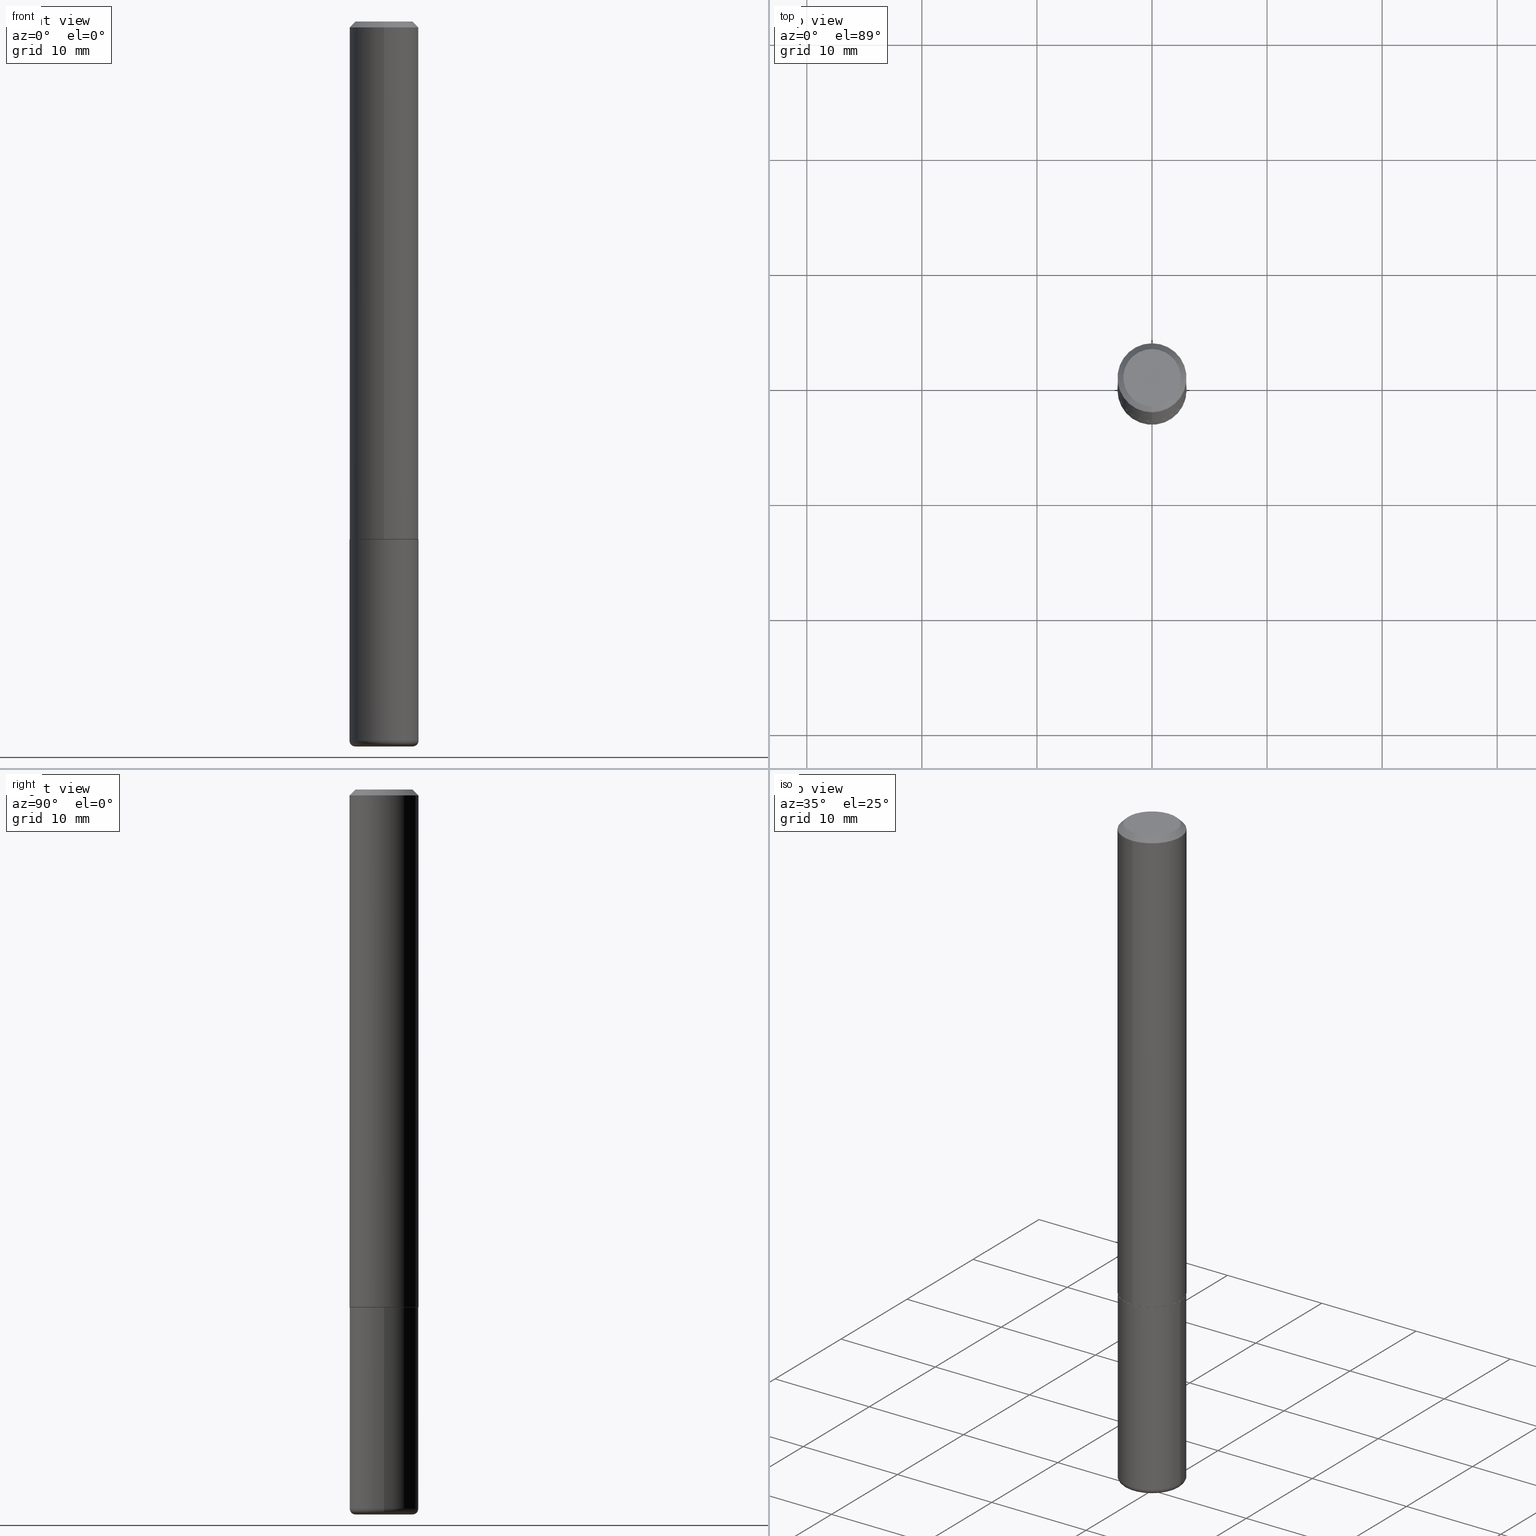
[diagram: canonical four-view strip — front | top / right | iso, engineering-drawing reading convention]
A machine part, canonical four-view strip (front | top / right | iso — engineering-drawing reading convention). The complete STEP part file that produces these views, byte-faithful:
ISO-10303-21;
HEADER;
FILE_DESCRIPTION (( 'STEP AP203' ),
    '1' );
FILE_NAME ('47484.STEP',
    '2024-03-06T02:10:16',
    ( '' ),
    ( '' ),
    'SwSTEP 2.0',
    'SolidWorks 2023',
    '' );
FILE_SCHEMA (( 'CONFIG_CONTROL_DESIGN' ));
ENDSEC;

DATA;
#1 = CIRCLE ( 'NONE', #48, 0.01970000000000002999 ) ;
#2 = EDGE_LOOP ( 'NONE', ( #354, #217 ) ) ;
#3 = ORIENTED_EDGE ( 'NONE', *, *, #398, .T. ) ;
#4 =( CONVERSION_BASED_UNIT ( 'INCH', #192 ) LENGTH_UNIT ( ) NAMED_UNIT ( #39 ) );
#5 = CC_DESIGN_PERSON_AND_ORGANIZATION_ASSIGNMENT ( #362, #401, ( #76 ) ) ;
#6 = AXIS2_PLACEMENT_3D ( 'NONE', #379, #180, #202 ) ;
#7 = CC_DESIGN_APPROVAL ( #163, ( #76 ) ) ;
#8 = PERSON ( 'UNSPECIFIED', 'UNSPECIFIED', 'UNSPECIFIED', ('UNSPECIFIED'), ('UNSPECIFIED'), ('UNSPECIFIED') ) ;
#9 = FACE_OUTER_BOUND ( 'NONE', #44, .T. ) ;
#10 = PERSON_AND_ORGANIZATION ( #8, #215 ) ;
#11 = FACE_OUTER_BOUND ( 'NONE', #311, .T. ) ;
#12 = CALENDAR_DATE ( 2024, 5, 3 ) ;
#13 = ADVANCED_FACE ( 'NONE', ( #60 ), #185, .F. ) ;
#14 = CARTESIAN_POINT ( 'NONE',  ( -8.177049295570184665E-16, -0.1171000000000061991, -1.771600000000000064 ) ) ;
#15 = CARTESIAN_POINT ( 'NONE',  ( 4.328441800620257960E-29, -6.191166019306087880E-15, -1.771600000000000286 ) ) ;
#16 = CC_DESIGN_PERSON_AND_ORGANIZATION_ASSIGNMENT ( #363, #223, ( #76 ) ) ;
#17 = AXIS2_PLACEMENT_3D ( 'NONE', #15, #105, #82 ) ;
#18 = CIRCLE ( 'NONE', #24, 0.1181000000000002326 ) ;
#19 = CARTESIAN_POINT ( 'NONE',  ( -0.1180999999999999966, -6.549172690193302663E-15, -1.771600000000000286 ) ) ;
#20 = APPROVAL_STATUS ( 'not_yet_approved' ) ;
#21 = CARTESIAN_POINT ( 'NONE',  ( -0.1181000000000000105, -7.751988011424766742E-15, -2.460600000000000342 ) ) ;
#22 = CARTESIAN_POINT ( 'NONE',  ( 0.09840000000000000135, -9.347044692216982806E-15, -2.480300000000000171 ) ) ;
#23 = DIRECTION ( 'NONE',  ( 1.000000000000000000, -6.982962677686261977E-15, 0.000000000000000000 ) ) ;
#24 = AXIS2_PLACEMENT_3D ( 'NONE', #85, #230, #208 ) ;
#25 = CC_DESIGN_PERSON_AND_ORGANIZATION_ASSIGNMENT ( #30, #154, ( #73 ) ) ;
#26 = CARTESIAN_POINT ( 'NONE',  ( 4.328441800620257960E-29, -6.191166019306087880E-15, -1.771600000000000286 ) ) ;
#27 = ORIENTED_EDGE ( 'NONE', *, *, #111, .T. ) ;
#28 = DIRECTION ( 'NONE',  ( -2.445468806185136877E-29, 3.491481338843145188E-15, 1.000000000000000000 ) ) ;
#29 = DIRECTION ( 'NONE',  ( -2.445468806185136597E-29, 3.491481338843145583E-15, 1.000000000000000000 ) ) ;
#30 = PERSON_AND_ORGANIZATION ( #8, #215 ) ;
#31 = CIRCLE ( 'NONE', #80, 0.1180999999999999966 ) ;
#32 = ORIENTED_EDGE ( 'NONE', *, *, #251, .T. ) ;
#33 = ORIENTED_EDGE ( 'NONE', *, *, #398, .F. ) ;
#34 =( NAMED_UNIT ( * ) SI_UNIT ( $, .STERADIAN. ) SOLID_ANGLE_UNIT ( ) );
#35 = EDGE_CURVE ( 'NONE', #229, #101, #344, .T. ) ;
#36 = ORIENTED_EDGE ( 'NONE', *, *, #367, .F. ) ;
#37 = SECURITY_CLASSIFICATION ( '', '', #40 ) ;
#38 = UNCERTAINTY_MEASURE_WITH_UNIT (LENGTH_MEASURE( 1.000000000000000082E-05 ), #4, 'distance_accuracy_value', 'NONE');
#39 = DIMENSIONAL_EXPONENTS ( 1.000000000000000000, 0.000000000000000000, 0.000000000000000000, 0.000000000000000000, 0.000000000000000000, 0.000000000000000000, 0.000000000000000000 ) ;
#40 = SECURITY_CLASSIFICATION_LEVEL ( 'unclassified' ) ;
#41 = ORIENTED_EDGE ( 'NONE', *, *, #43, .T. ) ;
#42 = LOCAL_TIME ( 21, 10, 16.00000000000000000, #218 ) ;
#43 = EDGE_CURVE ( 'NONE', #400, #101, #416, .T. ) ;
#44 = EDGE_LOOP ( 'NONE', ( #55, #382, #276, #316 ) ) ;
#45 = CALENDAR_DATE ( 2024, 5, 3 ) ;
#46 = DIRECTION ( 'NONE',  ( 2.438088387897960049E-29, -3.491481338843145188E-15, -1.000000000000000000 ) ) ;
#47 = CARTESIAN_POINT ( 'NONE',  ( 0.000000000000000000, 0.000000000000000000, 0.000000000000000000 ) ) ;
#48 = AXIS2_PLACEMENT_3D ( 'NONE', #320, #89, #385 ) ;
#49 = ADVANCED_FACE ( 'NONE', ( #11 ), #339, .T. ) ;
#50 = DIRECTION ( 'NONE',  ( -2.445468806185136597E-29, 3.491481338843145583E-15, 1.000000000000000000 ) ) ;
#51 = CARTESIAN_POINT ( 'NONE',  ( -0.1180999999999999966, 8.391509709326782957E-16, -5.809262341591043784E-30 ) ) ;
#52 = APPROVAL_ROLE ( '' ) ;
#53 = DIRECTION ( 'NONE',  ( -6.982962677686265922E-15, -1.000000000000000000, 3.494674881071397705E-15 ) ) ;
#54 = DIRECTION ( 'NONE',  ( -2.445468806185136597E-29, 3.491481338843145583E-15, 1.000000000000000000 ) ) ;
#55 = ORIENTED_EDGE ( 'NONE', *, *, #228, .F. ) ;
#56 = APPROVAL ( #20, 'UNSPECIFIED' ) ;
#57 = ADVANCED_FACE ( 'NONE', ( #374 ), #126, .T. ) ;
#58 = CARTESIAN_POINT ( 'NONE',  ( 6.017320544499148018E-29, -8.591138982357444151E-15, -2.460600000000000342 ) ) ;
#59 = AXIS2_PLACEMENT_3D ( 'NONE', #176, #54, #407 ) ;
#60 = FACE_OUTER_BOUND ( 'NONE', #247, .T. ) ;
#61 = FACE_OUTER_BOUND ( 'NONE', #104, .T. ) ;
#62 = APPROVAL_DATE_TIME ( #240, #306 ) ;
#63 = EDGE_CURVE ( 'NONE', #101, #229, #364, .T. ) ;
#64 = VERTEX_POINT ( 'NONE', #14 ) ;
#65 = ORIENTED_EDGE ( 'NONE', *, *, #167, .T. ) ;
#66 = APPROVAL_PERSON_ORGANIZATION ( #397, #306, #348 ) ;
#67 = VERTEX_POINT ( 'NONE', #261 ) ;
#68 = PERSON_AND_ORGANIZATION_ROLE ( 'design_owner' ) ;
#69 = CARTESIAN_POINT ( 'NONE',  ( -6.369341406389364514E-45, 9.110357005365375257E-31, 2.606925483887165818E-16 ) ) ;
#70 = AXIS2_PLACEMENT_3D ( 'NONE', #134, #334, #259 ) ;
#71 = CIRCLE ( 'NONE', #395, 0.09809999999999975684 ) ;
#72 = LOCAL_TIME ( 21, 10, 16.00000000000000000, #100 ) ;
#73 = PRODUCT_DEFINITION ( 'UNKNOWN', '', #76, #290 ) ;
#74 = EDGE_CURVE ( 'NONE', #237, #204, #136, .T. ) ;
#75 = VECTOR ( 'NONE', #187, 39.37007874015748143 ) ;
#76 = PRODUCT_DEFINITION_FORMATION_WITH_SPECIFIED_SOURCE ( 'ANY', '', #233, .NOT_KNOWN. ) ;
#77 = FACE_OUTER_BOUND ( 'NONE', #122, .T. ) ;
#78 = CARTESIAN_POINT ( 'NONE',  ( 6.065496279980994755E-29, -8.659921164732655335E-15, -2.480300000000000171 ) ) ;
#79 = CARTESIAN_POINT ( 'NONE',  ( 4.332392537037588763E-29, -6.185508339894517569E-15, -1.771600000000000286 ) ) ;
#80 = AXIS2_PLACEMENT_3D ( 'NONE', #83, #207, #388 ) ;
#81 = ORIENTED_EDGE ( 'NONE', *, *, #194, .T. ) ;
#82 = DIRECTION ( 'NONE',  ( -6.982962677686265922E-15, -1.000000000000000000, 2.332918867347791121E-15 ) ) ;
#83 = CARTESIAN_POINT ( 'NONE',  ( 6.017320544499148018E-29, -8.591138982357444151E-15, -2.460600000000000342 ) ) ;
#84 = DIRECTION ( 'NONE',  ( -6.982962677686265922E-15, -1.000000000000000000, 2.332918867347791121E-15 ) ) ;
#85 = CARTESIAN_POINT ( 'NONE',  ( 4.325998561852691348E-29, -6.187671344425017014E-15, -1.770600000000000174 ) ) ;
#86 = DIRECTION ( 'NONE',  ( 1.000000000000000000, -6.982962677686265133E-15, 0.000000000000000000 ) ) ;
#87 = CC_DESIGN_PERSON_AND_ORGANIZATION_ASSIGNMENT ( #331, #166, ( #37 ) ) ;
#88 = AXIS2_PLACEMENT_3D ( 'NONE', #227, #293, #294 ) ;
#89 = DIRECTION ( 'NONE',  ( -6.982962677686266711E-15, -1.000000000000000000, 3.491481338843145583E-15 ) ) ;
#90 = DIRECTION ( 'NONE',  ( 5.024295867788490741E-15, 0.7071067811866103003, 0.7071067811864847341 ) ) ;
#91 = ORIENTED_EDGE ( 'NONE', *, *, #314, .F. ) ;
#92 = ORIENTED_EDGE ( 'NONE', *, *, #167, .F. ) ;
#93 = ORIENTED_EDGE ( 'NONE', *, *, #367, .T. ) ;
#94 = ORIENTED_EDGE ( 'NONE', *, *, #309, .F. ) ;
#95 = EDGE_CURVE ( 'NONE', #64, #352, #175, .T. ) ;
#96 = APPROVAL_STATUS ( 'not_yet_approved' ) ;
#97 = DATE_AND_TIME ( #257, #356 ) ;
#98 = VECTOR ( 'NONE', #241, 39.37007874015748143 ) ;
#99 =( GEOMETRIC_REPRESENTATION_CONTEXT ( 3 ) GLOBAL_UNCERTAINTY_ASSIGNED_CONTEXT ( ( #38 ) ) GLOBAL_UNIT_ASSIGNED_CONTEXT ( ( #4, #127, #34 ) ) REPRESENTATION_CONTEXT ( 'NONE', 'WORKASPACE' ) );
#100 = COORDINATED_UNIVERSAL_TIME_OFFSET ( 5, 0, .BEHIND. ) ;
#101 = VERTEX_POINT ( 'NONE', #368 ) ;
#102 = ADVANCED_FACE ( 'NONE', ( #77 ), #199, .T. ) ;
#103 = ADVANCED_FACE ( 'NONE', ( #369 ), #113, .T. ) ;
#104 = EDGE_LOOP ( 'NONE', ( #33, #402, #173, #396 ) ) ;
#105 = DIRECTION ( 'NONE',  ( -2.443238767566187138E-29, 3.494674881071396916E-15, 1.000000000000000000 ) ) ;
#106 = ORIENTED_EDGE ( 'NONE', *, *, #74, .F. ) ;
#107 = DIRECTION ( 'NONE',  ( -2.445468806185136597E-29, 3.491481338843145583E-15, 1.000000000000000000 ) ) ;
#108 = CARTESIAN_POINT ( 'NONE',  ( 6.017320544499148018E-29, -8.591138982357444151E-15, -2.460600000000000342 ) ) ;
#109 = CARTESIAN_POINT ( 'NONE',  ( 0.1180999999999999966, -7.010196232129265043E-15, -1.771600000000000286 ) ) ;
#110 = CARTESIAN_POINT ( 'NONE',  ( 4.886477535132384121E-31, -6.989349762142808870E-17, -0.02000000000000004205 ) ) ;
#111 = EDGE_CURVE ( 'NONE', #204, #237, #155, .T. ) ;
#112 = AXIS2_PLACEMENT_3D ( 'NONE', #26, #149, #269 ) ;
#113 = CYLINDRICAL_SURFACE ( 'NONE', #399, 0.1180999999999999966 ) ;
#114 = DIRECTION ( 'NONE',  ( -4.851104656540957175E-15, -0.7071067811865490160, -0.7071067811865460184 ) ) ;
#115 = DIRECTION ( 'NONE',  ( -2.443238767566187138E-29, 3.494674881071396916E-15, 1.000000000000000000 ) ) ;
#116 = DIRECTION ( 'NONE',  ( 7.105427357601001859E-15, 1.000000000000000000, -3.491481338843145583E-15 ) ) ;
#117 = CARTESIAN_POINT ( 'NONE',  ( 8.246878922347484598E-16, 0.1180999999999999273, -0.02000000000000045838 ) ) ;
#118 = DIRECTION ( 'NONE',  ( 6.982962677686265922E-15, 1.000000000000000000, -3.505890868245046092E-15 ) ) ;
#119 = EDGE_LOOP ( 'NONE', ( #246, #315, #81, #92 ) ) ;
#120 = AXIS2_PLACEMENT_3D ( 'NONE', #69, #162, #157 ) ;
#121 = APPROVAL_PERSON_ORGANIZATION ( #10, #163, #366 ) ;
#122 = EDGE_LOOP ( 'NONE', ( #129, #32, #36, #389 ) ) ;
#123 = DIRECTION ( 'NONE',  ( -2.445468806185136597E-29, 3.491481338843145583E-15, 1.000000000000000000 ) ) ;
#124 = DIRECTION ( 'NONE',  ( 2.443238767566186578E-29, -3.494674881071397310E-15, -1.000000000000000000 ) ) ;
#125 = EDGE_LOOP ( 'NONE', ( #384, #3, #392, #277 ) ) ;
#126 = CONICAL_SURFACE ( 'NONE', #17, 0.1170999999999999958, 0.7853981633975336552 ) ;
#127 =( NAMED_UNIT ( * ) PLANE_ANGLE_UNIT ( ) SI_UNIT ( $, .RADIAN. ) );
#128 = CIRCLE ( 'NONE', #156, 0.1180999999999999966 ) ;
#129 = ORIENTED_EDGE ( 'NONE', *, *, #146, .T. ) ;
#130 = COORDINATED_UNIVERSAL_TIME_OFFSET ( 5, 0, .BEHIND. ) ;
#131 = AXIS2_PLACEMENT_3D ( 'NONE', #383, #116, #415 ) ;
#132 = APPROVAL_STATUS ( 'not_yet_approved' ) ;
#133 = VERTEX_POINT ( 'NONE', #359 ) ;
#134 = CARTESIAN_POINT ( 'NONE',  ( 6.065496279980994755E-29, -8.659921164732655335E-15, -2.480300000000000171 ) ) ;
#135 = DIRECTION ( 'NONE',  ( -6.982962677686265922E-15, -1.000000000000000000, 3.505890868245046092E-15 ) ) ;
#136 = CIRCLE ( 'NONE', #70, 0.09840000000000000135 ) ;
#137 = VECTOR ( 'NONE', #28, 39.37007874015748143 ) ;
#138 = EDGE_LOOP ( 'NONE', ( #94, #91, #41, #286 ) ) ;
#139 = PRODUCT_DEFINITION_SHAPE ( 'NONE', 'NONE',  #73 ) ;
#140 = LINE ( 'NONE', #51, #137 ) ;
#141 = EDGE_LOOP ( 'NONE', ( #258, #349, #249, #405 ) ) ;
#142 = PLANE ( 'NONE',  #112 ) ;
#143 = LINE ( 'NONE', #210, #225 ) ;
#144 = CARTESIAN_POINT ( 'NONE',  ( -8.246878922347063544E-16, -0.1181000000000064221, -1.770599999999999730 ) ) ;
#145 = CARTESIAN_POINT ( 'NONE',  ( 8.355982572539216720E-16, 0.1170999999999937924, -1.771600000000000508 ) ) ;
#146 = EDGE_CURVE ( 'NONE', #262, #160, #31, .T. ) ;
#147 = CIRCLE ( 'NONE', #337, 0.1170999999999999958 ) ;
#148 = APPROVAL_PERSON_ORGANIZATION ( #413, #56, #52 ) ;
#149 = DIRECTION ( 'NONE',  ( -2.443238767566186578E-29, 3.494674881071397310E-15, 1.000000000000000000 ) ) ;
#150 = CC_DESIGN_DATE_AND_TIME_ASSIGNMENT ( #408, #377, ( #37 ) ) ;
#151 = DIRECTION ( 'NONE',  ( -2.445468806185136877E-29, 3.491481338843145188E-15, 1.000000000000000000 ) ) ;
#152 = DIRECTION ( 'NONE',  ( 1.000000000000000000, -6.982962677686265133E-15, 0.000000000000000000 ) ) ;
#153 = DIRECTION ( 'NONE',  ( -2.443238767566187138E-29, 3.494674881071396916E-15, 1.000000000000000000 ) ) ;
#154 = PERSON_AND_ORGANIZATION_ROLE ( 'creator' ) ;
#155 = CIRCLE ( 'NONE', #201, 0.09840000000000000135 ) ;
#156 = AXIS2_PLACEMENT_3D ( 'NONE', #342, #29, #86 ) ;
#157 = DIRECTION ( 'NONE',  ( -6.982962677686265922E-15, -1.000000000000000000, 3.494674881071397705E-15 ) ) ;
#158 = CARTESIAN_POINT ( 'NONE',  ( 4.886477535132384121E-31, -6.989349762142808870E-17, -0.02000000000000004205 ) ) ;
#159 = ORIENTED_EDGE ( 'NONE', *, *, #74, .T. ) ;
#160 = VERTEX_POINT ( 'NONE', #21 ) ;
#161 = AXIS2_PLACEMENT_3D ( 'NONE', #158, #353, #307 ) ;
#162 = DIRECTION ( 'NONE',  ( -2.443238767566187138E-29, 3.494674881071396916E-15, 1.000000000000000000 ) ) ;
#163 = APPROVAL ( #132, 'UNSPECIFIED' ) ;
#164 = DIRECTION ( 'NONE',  ( -6.982962677686265922E-15, -1.000000000000000000, 3.494674881071396522E-15 ) ) ;
#165 = COORDINATED_UNIVERSAL_TIME_OFFSET ( 5, 0, .BEHIND. ) ;
#166 = PERSON_AND_ORGANIZATION_ROLE ( 'classification_officer' ) ;
#167 = EDGE_CURVE ( 'NONE', #198, #345, #128, .T. ) ;
#168 = LINE ( 'NONE', #285, #387 ) ;
#169 = CONICAL_SURFACE ( 'NONE', #88, 0.1180999999999999966, 0.7853981633974469467 ) ;
#170 = AXIS2_PLACEMENT_3D ( 'NONE', #234, #298, #84 ) ;
#171 = CC_DESIGN_APPROVAL ( #56, ( #37 ) ) ;
#172 = EDGE_CURVE ( 'NONE', #160, #262, #267, .T. ) ;
#173 = ORIENTED_EDGE ( 'NONE', *, *, #284, .T. ) ;
#174 = APPROVAL_DATE_TIME ( #263, #56 ) ;
#175 = LINE ( 'NONE', #406, #386 ) ;
#176 = CARTESIAN_POINT ( 'NONE',  ( 6.017320544499148018E-29, -8.591138982357444151E-15, -2.460600000000000342 ) ) ;
#177 = FACE_OUTER_BOUND ( 'NONE', #2, .T. ) ;
#178 = FACE_OUTER_BOUND ( 'NONE', #273, .T. ) ;
#179 = CARTESIAN_POINT ( 'NONE',  ( -6.369341406389364514E-45, 9.110357005365375257E-31, 2.606925483887165818E-16 ) ) ;
#180 = DIRECTION ( 'NONE',  ( -2.443238767566187138E-29, 3.494674881071396916E-15, 1.000000000000000000 ) ) ;
#181 = DIRECTION ( 'NONE',  ( 1.000000000000000000, -6.982962677686270655E-15, 4.883557194083114583E-29 ) ) ;
#182 = ORIENTED_EDGE ( 'NONE', *, *, #314, .T. ) ;
#183 = EDGE_CURVE ( 'NONE', #64, #244, #255, .T. ) ;
#184 = CARTESIAN_POINT ( 'NONE',  ( 4.328441800620257960E-29, -6.191166019306087880E-15, -1.771600000000000286 ) ) ;
#185 = PLANE ( 'NONE',  #253 ) ;
#186 = DIRECTION ( 'NONE',  ( -6.982962677686265922E-15, -1.000000000000000000, 2.332918867347791121E-15 ) ) ;
#187 = DIRECTION ( 'NONE',  ( -2.443238767566187138E-29, 3.494674881071397310E-15, 1.000000000000000000 ) ) ;
#188 = DIRECTION ( 'NONE',  ( -2.443238767566187138E-29, 3.494674881071396916E-15, 1.000000000000000000 ) ) ;
#189 = ORIENTED_EDGE ( 'NONE', *, *, #35, .T. ) ;
#190 = AXIS2_PLACEMENT_3D ( 'NONE', #264, #265, #409 ) ;
#191 = EDGE_CURVE ( 'NONE', #352, #133, #303, .T. ) ;
#192 = LENGTH_MEASURE_WITH_UNIT ( LENGTH_MEASURE( 0.02539999999999999897 ), #390 );
#193 = APPLICATION_PROTOCOL_DEFINITION ( 'international standard', 'config_control_design', 1994, #281 ) ;
#194 = EDGE_CURVE ( 'NONE', #262, #345, #143, .T. ) ;
#195 = ADVANCED_FACE ( 'NONE', ( #308 ), #317, .T. ) ;
#196 = TOROIDAL_SURFACE ( 'NONE', #250, 0.09840000000000000135, 0.01970000000000002999 ) ;
#197 = CIRCLE ( 'NONE', #131, 0.01970000000000002999 ) ;
#198 = VERTEX_POINT ( 'NONE', #19 ) ;
#199 = CYLINDRICAL_SURFACE ( 'NONE', #243, 0.1180999999999999966 ) ;
#200 = SHAPE_DEFINITION_REPRESENTATION ( #139, #299 ) ;
#201 = AXIS2_PLACEMENT_3D ( 'NONE', #239, #327, #23 ) ;
#202 = DIRECTION ( 'NONE',  ( -6.982962677686265922E-15, -1.000000000000000000, 4.626330217890360659E-15 ) ) ;
#203 = CONICAL_SURFACE ( 'NONE', #346, 0.1170999999999999958, 0.7853981633975336552 ) ;
#204 = VERTEX_POINT ( 'NONE', #347 ) ;
#205 = DIRECTION ( 'NONE',  ( -2.443238767566187138E-29, 3.494674881071397310E-15, 1.000000000000000000 ) ) ;
#206 = FACE_OUTER_BOUND ( 'NONE', #138, .T. ) ;
#207 = DIRECTION ( 'NONE',  ( -2.445468806185136597E-29, 3.491481338843145583E-15, 1.000000000000000000 ) ) ;
#208 = DIRECTION ( 'NONE',  ( -6.982962677686265922E-15, -1.000000000000000000, 4.626330217890360659E-15 ) ) ;
#209 = CYLINDRICAL_SURFACE ( 'NONE', #190, 0.1181000000000001215 ) ;
#210 = CARTESIAN_POINT ( 'NONE',  ( 0.1180999999999999966, -8.246878922347480654E-16, 5.758764772215000440E-30 ) ) ;
#211 = ORIENTED_EDGE ( 'NONE', *, *, #111, .F. ) ;
#212 = CARTESIAN_POINT ( 'NONE',  ( 7.548582654578847672E-16, 0.09809999999999975684, -8.213505744438662948E-17 ) ) ;
#213 = EDGE_CURVE ( 'NONE', #204, #160, #197, .T. ) ;
#214 = DIRECTION ( 'NONE',  ( 6.982962677686265922E-15, 1.000000000000000000, -3.494674881071397310E-15 ) ) ;
#215 = ORGANIZATION ( 'UNSPECIFIED', 'UNSPECIFIED', '' ) ;
#216 = MECHANICAL_CONTEXT ( 'NONE', #324, 'mechanical' ) ;
#217 = ORIENTED_EDGE ( 'NONE', *, *, #222, .F. ) ;
#218 = COORDINATED_UNIVERSAL_TIME_OFFSET ( 5, 0, .BEHIND. ) ;
#219 = APPROVAL_DATE_TIME ( #97, #163 ) ;
#220 = VECTOR ( 'NONE', #90, 39.37007874015748143 ) ;
#221 = CALENDAR_DATE ( 2024, 5, 3 ) ;
#222 = EDGE_CURVE ( 'NONE', #244, #64, #147, .T. ) ;
#223 = PERSON_AND_ORGANIZATION_ROLE ( 'design_supplier' ) ;
#224 = DIRECTION ( 'NONE',  ( -4.937700262164969294E-15, -0.7071067811866054154, 0.7071067811864896191 ) ) ;
#225 = VECTOR ( 'NONE', #151, 39.37007874015748143 ) ;
#226 = DIRECTION ( 'NONE',  ( 1.000000000000000000, -6.982962677686266711E-15, 4.876176775795936353E-29 ) ) ;
#227 = CARTESIAN_POINT ( 'NONE',  ( 4.886477535132384121E-31, -6.989349762142808870E-17, -0.02000000000000004205 ) ) ;
#228 = EDGE_CURVE ( 'NONE', #244, #133, #304, .T. ) ;
#229 = VERTEX_POINT ( 'NONE', #350 ) ;
#230 = DIRECTION ( 'NONE',  ( -2.443238767566187138E-29, 3.494674881071396916E-15, 1.000000000000000000 ) ) ;
#231 = DIRECTION ( 'NONE',  ( 2.438088387897960049E-29, -3.491481338843145188E-15, -1.000000000000000000 ) ) ;
#232 = AXIS2_PLACEMENT_3D ( 'NONE', #110, #270, #118 ) ;
#233 = PRODUCT ( '47484', '47484', '', ( #216 ) ) ;
#234 = CARTESIAN_POINT ( 'NONE',  ( 4.328441800620257960E-29, -6.191166019306087880E-15, -1.771600000000000286 ) ) ;
#235 = ADVANCED_FACE ( 'NONE', ( #206 ), #169, .T. ) ;
#236 = CARTESIAN_POINT ( 'NONE',  ( 4.332392537037588763E-29, -6.185508339894517569E-15, -1.771600000000000286 ) ) ;
#237 = VERTEX_POINT ( 'NONE', #22 ) ;
#238 = FACE_OUTER_BOUND ( 'NONE', #351, .T. ) ;
#239 = CARTESIAN_POINT ( 'NONE',  ( 6.065496279980994755E-29, -8.659921164732655335E-15, -2.480300000000000171 ) ) ;
#240 = DATE_AND_TIME ( #323, #42 ) ;
#241 = DIRECTION ( 'NONE',  ( 4.937700262164540942E-15, 0.7071067811865441310, -0.7071067811865509034 ) ) ;
#242 = DIRECTION ( 'NONE',  ( -2.445468806185136597E-29, 3.491481338843145583E-15, 1.000000000000000000 ) ) ;
#243 = AXIS2_PLACEMENT_3D ( 'NONE', #291, #107, #226 ) ;
#244 = VERTEX_POINT ( 'NONE', #145 ) ;
#245 = AXIS2_PLACEMENT_3D ( 'NONE', #79, #231, #271 ) ;
#246 = ORIENTED_EDGE ( 'NONE', *, *, #251, .F. ) ;
#247 = EDGE_LOOP ( 'NONE', ( #182, #274 ) ) ;
#248 = CARTESIAN_POINT ( 'NONE',  ( 0.000000000000000000, 0.000000000000000000, 0.000000000000000000 ) ) ;
#249 = ORIENTED_EDGE ( 'NONE', *, *, #191, .F. ) ;
#250 = AXIS2_PLACEMENT_3D ( 'NONE', #108, #50, #181 ) ;
#251 = EDGE_CURVE ( 'NONE', #160, #198, #140, .T. ) ;
#252 = DIRECTION ( 'NONE',  ( 1.000000000000000000, 0.000000000000000000, 0.000000000000000000 ) ) ;
#253 = AXIS2_PLACEMENT_3D ( 'NONE', #391, #124, #214 ) ;
#254 = CC_DESIGN_DATE_AND_TIME_ASSIGNMENT ( #329, #282, ( #73 ) ) ;
#255 = CIRCLE ( 'NONE', #170, 0.1170999999999999958 ) ;
#256 = ADVANCED_FACE ( 'NONE', ( #238 ), #326, .T. ) ;
#257 = CALENDAR_DATE ( 2024, 5, 3 ) ;
#258 = ORIENTED_EDGE ( 'NONE', *, *, #183, .T. ) ;
#259 = DIRECTION ( 'NONE',  ( 1.000000000000000000, -6.982962677686261977E-15, 0.000000000000000000 ) ) ;
#260 = ADVANCED_FACE ( 'NONE', ( #268 ), #209, .T. ) ;
#261 = CARTESIAN_POINT ( 'NONE',  ( -7.416198335591014190E-16, -0.09809999999999975684, 6.035201542218197439E-16 ) ) ;
#262 = VERTEX_POINT ( 'NONE', #338 ) ;
#263 = DATE_AND_TIME ( #45, #318 ) ;
#264 = CARTESIAN_POINT ( 'NONE',  ( 0.000000000000000000, 0.000000000000000000, 0.000000000000000000 ) ) ;
#265 = DIRECTION ( 'NONE',  ( -2.443238767566187138E-29, 3.494674881071396916E-15, 1.000000000000000000 ) ) ;
#266 = DIRECTION ( 'NONE',  ( -2.443238767566187138E-29, 3.494674881071396916E-15, 1.000000000000000000 ) ) ;
#267 = CIRCLE ( 'NONE', #59, 0.1180999999999999966 ) ;
#268 = FACE_OUTER_BOUND ( 'NONE', #125, .T. ) ;
#269 = DIRECTION ( 'NONE',  ( -6.982962677686265922E-15, -1.000000000000000000, 3.494674881071397310E-15 ) ) ;
#270 = DIRECTION ( 'NONE',  ( 2.443238767566187138E-29, -3.494674881071396916E-15, -1.000000000000000000 ) ) ;
#271 = DIRECTION ( 'NONE',  ( -1.000000000000000000, 6.982962677686265922E-15, -4.876176775795935793E-29 ) ) ;
#272 = ADVANCED_FACE ( 'NONE', ( #178 ), #372, .F. ) ;
#273 = EDGE_LOOP ( 'NONE', ( #93, #65 ) ) ;
#274 = ORIENTED_EDGE ( 'NONE', *, *, #403, .T. ) ;
#275 = ORIENTED_EDGE ( 'NONE', *, *, #43, .F. ) ;
#276 = ORIENTED_EDGE ( 'NONE', *, *, #95, .T. ) ;
#277 = ORIENTED_EDGE ( 'NONE', *, *, #284, .F. ) ;
#278 = PERSON_AND_ORGANIZATION ( #8, #215 ) ;
#279 = ADVANCED_FACE ( 'NONE', ( #61 ), #411, .T. ) ;
#280 = AXIS2_PLACEMENT_3D ( 'NONE', #417, #115, #164 ) ;
#281 = APPLICATION_CONTEXT ( 'configuration controlled 3d designs of mechanical parts and assemblies' ) ;
#282 = DATE_TIME_ROLE ( 'creation_date' ) ;
#283 = ADVANCED_FACE ( 'NONE', ( #9 ), #203, .T. ) ;
#284 = EDGE_CURVE ( 'NONE', #352, #229, #168, .T. ) ;
#285 = CARTESIAN_POINT ( 'NONE',  ( -8.246878922347488542E-16, -0.1181000000000001215, 4.127211034545323724E-16 ) ) ;
#286 = ORIENTED_EDGE ( 'NONE', *, *, #63, .T. ) ;
#287 = CC_DESIGN_APPROVAL ( #306, ( #73 ) ) ;
#288 = CC_DESIGN_PERSON_AND_ORGANIZATION_ASSIGNMENT ( #278, #68, ( #233 ) ) ;
#289 = DIRECTION ( 'NONE',  ( -2.443238767566187138E-29, 3.494674881071396916E-15, 1.000000000000000000 ) ) ;
#290 = DESIGN_CONTEXT ( 'detailed design', #281, 'design' ) ;
#291 = CARTESIAN_POINT ( 'NONE',  ( 0.000000000000000000, 0.000000000000000000, 0.000000000000000000 ) ) ;
#292 = CIRCLE ( 'NONE', #120, 0.09809999999999975684 ) ;
#293 = DIRECTION ( 'NONE',  ( 2.443238767566187138E-29, -3.494674881071396916E-15, -1.000000000000000000 ) ) ;
#294 = DIRECTION ( 'NONE',  ( 6.982962677686265922E-15, 1.000000000000000000, -3.505890868245046092E-15 ) ) ;
#295 = PRODUCT_RELATED_PRODUCT_CATEGORY ( 'detail', '', ( #233 ) ) ;
#296 = MANIFOLD_SOLID_BREP ( 'Body-Move/Copy2[2]', #360 ) ;
#297 = CARTESIAN_POINT ( 'NONE',  ( 4.886477535132384121E-31, -6.989349762142808870E-17, -0.02000000000000004205 ) ) ;
#298 = DIRECTION ( 'NONE',  ( -2.443238767566187138E-29, 3.494674881071396916E-15, 1.000000000000000000 ) ) ;
#299 = ADVANCED_BREP_SHAPE_REPRESENTATION ( '47484', ( #322, #296, #404 ), #99 ) ;
#300 = COORDINATED_UNIVERSAL_TIME_OFFSET ( 5, 0, .BEHIND. ) ;
#301 = FACE_OUTER_BOUND ( 'NONE', #335, .T. ) ;
#302 = CLOSED_SHELL ( 'NONE', ( #102, #321, #272, #103, #195, #49 ) ) ;
#303 = CIRCLE ( 'NONE', #6, 0.1181000000000002326 ) ;
#304 = LINE ( 'NONE', #341, #220 ) ;
#305 = ORIENTED_EDGE ( 'NONE', *, *, #213, .T. ) ;
#306 = APPROVAL ( #96, 'UNSPECIFIED' ) ;
#307 = DIRECTION ( 'NONE',  ( -6.982962677686265922E-15, -1.000000000000000000, 3.505890868245046092E-15 ) ) ;
#308 = FACE_OUTER_BOUND ( 'NONE', #328, .T. ) ;
#309 = EDGE_CURVE ( 'NONE', #67, #229, #378, .T. ) ;
#310 = APPLICATION_PROTOCOL_DEFINITION ( 'international standard', 'config_control_design', 1994, #324 ) ;
#311 = EDGE_LOOP ( 'NONE', ( #106, #211 ) ) ;
#312 = CARTESIAN_POINT ( 'NONE',  ( 4.328441800620257960E-29, -6.191166019306087880E-15, -1.771600000000000286 ) ) ;
#313 = ORIENTED_EDGE ( 'NONE', *, *, #309, .T. ) ;
#314 = EDGE_CURVE ( 'NONE', #400, #67, #71, .T. ) ;
#315 = ORIENTED_EDGE ( 'NONE', *, *, #172, .T. ) ;
#316 = ORIENTED_EDGE ( 'NONE', *, *, #373, .F. ) ;
#317 = TOROIDAL_SURFACE ( 'NONE', #365, 0.09840000000000000135, 0.01970000000000002999 ) ;
#318 = LOCAL_TIME ( 21, 10, 16.00000000000000000, #300 ) ;
#319 = ORIENTED_EDGE ( 'NONE', *, *, #146, .F. ) ;
#320 = CARTESIAN_POINT ( 'NONE',  ( 0.09840000000000000135, -9.278262509841773199E-15, -2.460600000000000342 ) ) ;
#321 = ADVANCED_FACE ( 'NONE', ( #301 ), #196, .T. ) ;
#322 = MANIFOLD_SOLID_BREP ( 'Body-Move/Copy2[1]', #302 ) ;
#323 = CALENDAR_DATE ( 2024, 5, 3 ) ;
#324 = APPLICATION_CONTEXT ( 'configuration controlled 3d designs of mechanical parts and assemblies' ) ;
#325 = AXIS2_PLACEMENT_3D ( 'NONE', #297, #289, #135 ) ;
#326 = CONICAL_SURFACE ( 'NONE', #232, 0.1180999999999999966, 0.7853981633974469467 ) ;
#327 = DIRECTION ( 'NONE',  ( -2.445468806185136597E-29, 3.491481338843145583E-15, 1.000000000000000000 ) ) ;
#328 = EDGE_LOOP ( 'NONE', ( #358, #27, #370, #357 ) ) ;
#329 = DATE_AND_TIME ( #12, #332 ) ;
#330 = DIRECTION ( 'NONE',  ( 1.000000000000000000, -6.982962677686266711E-15, 4.876176775795936353E-29 ) ) ;
#331 = PERSON_AND_ORGANIZATION ( #8, #215 ) ;
#332 = LOCAL_TIME ( 21, 10, 16.00000000000000000, #165 ) ;
#333 = ADVANCED_FACE ( 'NONE', ( #177 ), #142, .F. ) ;
#334 = DIRECTION ( 'NONE',  ( -2.445468806185136597E-29, 3.491481338843145583E-15, 1.000000000000000000 ) ) ;
#335 = EDGE_LOOP ( 'NONE', ( #159, #305, #319, #380 ) ) ;
#336 = AXIS2_PLACEMENT_3D ( 'NONE', #78, #46, #371 ) ;
#337 = AXIS2_PLACEMENT_3D ( 'NONE', #184, #153, #186 ) ;
#338 = CARTESIAN_POINT ( 'NONE',  ( 0.1181000000000000105, -9.415826874592192413E-15, -2.460600000000000342 ) ) ;
#339 = PLANE ( 'NONE',  #336 ) ;
#340 = CARTESIAN_POINT ( 'NONE',  ( 8.391509709326790846E-16, 0.1181000000000001215, -4.127211034545323724E-16 ) ) ;
#341 = CARTESIAN_POINT ( 'NONE',  ( 8.320455435751204777E-16, 0.1170999999999937924, -1.771600000000000508 ) ) ;
#342 = CARTESIAN_POINT ( 'NONE',  ( 4.332392537037588763E-29, -6.185508339894517569E-15, -1.771600000000000286 ) ) ;
#343 = LINE ( 'NONE', #340, #75 ) ;
#344 = CIRCLE ( 'NONE', #161, 0.1180999999999999966 ) ;
#345 = VERTEX_POINT ( 'NONE', #109 ) ;
#346 = AXIS2_PLACEMENT_3D ( 'NONE', #312, #188, #394 ) ;
#347 = CARTESIAN_POINT ( 'NONE',  ( -0.09840000000000000135, -7.856367562084741595E-15, -2.480300000000000171 ) ) ;
#348 = APPROVAL_ROLE ( '' ) ;
#349 = ORIENTED_EDGE ( 'NONE', *, *, #228, .T. ) ;
#350 = CARTESIAN_POINT ( 'NONE',  ( -8.102248135368172434E-16, -0.1181000000000000660, -0.01999999999999962919 ) ) ;
#351 = EDGE_LOOP ( 'NONE', ( #418, #313, #189, #275 ) ) ;
#352 = VERTEX_POINT ( 'NONE', #144 ) ;
#353 = DIRECTION ( 'NONE',  ( -2.443238767566187138E-29, 3.494674881071396916E-15, 1.000000000000000000 ) ) ;
#354 = ORIENTED_EDGE ( 'NONE', *, *, #183, .F. ) ;
#355 = CIRCLE ( 'NONE', #410, 0.1180999999999999966 ) ;
#356 = LOCAL_TIME ( 21, 10, 16.00000000000000000, #130 ) ;
#357 = ORIENTED_EDGE ( 'NONE', *, *, #172, .F. ) ;
#358 = ORIENTED_EDGE ( 'NONE', *, *, #213, .F. ) ;
#359 = CARTESIAN_POINT ( 'NONE',  ( 8.391509709327014685E-16, 0.1180999999999940708, -1.770600000000000840 ) ) ;
#360 = CLOSED_SHELL ( 'NONE', ( #57, #260, #256, #235, #279, #283, #333, #13 ) ) ;
#361 = CC_DESIGN_SECURITY_CLASSIFICATION ( #37, ( #76 ) ) ;
#362 = PERSON_AND_ORGANIZATION ( #8, #215 ) ;
#363 = PERSON_AND_ORGANIZATION ( #8, #215 ) ;
#364 = CIRCLE ( 'NONE', #325, 0.1180999999999999966 ) ;
#365 = AXIS2_PLACEMENT_3D ( 'NONE', #58, #242, #376 ) ;
#366 = APPROVAL_ROLE ( '' ) ;
#367 = EDGE_CURVE ( 'NONE', #345, #198, #355, .T. ) ;
#368 = CARTESIAN_POINT ( 'NONE',  ( 8.246878922347484598E-16, 0.1180999999999999273, -0.02000000000000045838 ) ) ;
#369 = FACE_OUTER_BOUND ( 'NONE', #119, .T. ) ;
#370 = ORIENTED_EDGE ( 'NONE', *, *, #412, .T. ) ;
#371 = DIRECTION ( 'NONE',  ( -1.000000000000000000, 6.982962677686265922E-15, -4.876176775795935793E-29 ) ) ;
#372 = PLANE ( 'NONE',  #245 ) ;
#373 = EDGE_CURVE ( 'NONE', #133, #352, #18, .T. ) ;
#374 = FACE_OUTER_BOUND ( 'NONE', #141, .T. ) ;
#375 = VECTOR ( 'NONE', #114, 39.37007874015748143 ) ;
#376 = DIRECTION ( 'NONE',  ( 1.000000000000000000, -6.982962677686270655E-15, 4.883557194083114583E-29 ) ) ;
#377 = DATE_TIME_ROLE ( 'classification_date' ) ;
#378 = LINE ( 'NONE', #414, #375 ) ;
#379 = CARTESIAN_POINT ( 'NONE',  ( 4.325998561852691348E-29, -6.187671344425017014E-15, -1.770600000000000174 ) ) ;
#380 = ORIENTED_EDGE ( 'NONE', *, *, #412, .F. ) ;
#381 = DIRECTION ( 'NONE',  ( -2.445468806185136597E-29, 3.491481338843145583E-15, 1.000000000000000000 ) ) ;
#382 = ORIENTED_EDGE ( 'NONE', *, *, #222, .T. ) ;
#383 = CARTESIAN_POINT ( 'NONE',  ( -0.09840000000000000135, -7.891964930369506840E-15, -2.460600000000000342 ) ) ;
#384 = ORIENTED_EDGE ( 'NONE', *, *, #191, .T. ) ;
#385 = DIRECTION ( 'NONE',  ( 1.000000000000000000, -6.982962677686218590E-15, 0.000000000000000000 ) ) ;
#386 = VECTOR ( 'NONE', #224, 39.37007874015748143 ) ;
#387 = VECTOR ( 'NONE', #205, 39.37007874015748143 ) ;
#388 = DIRECTION ( 'NONE',  ( 1.000000000000000000, -6.982962677686273021E-15, 0.000000000000000000 ) ) ;
#389 = ORIENTED_EDGE ( 'NONE', *, *, #194, .F. ) ;
#390 =( LENGTH_UNIT ( ) NAMED_UNIT ( * ) SI_UNIT ( $, .METRE. ) );
#391 = CARTESIAN_POINT ( 'NONE',  ( 6.850286386810209760E-16, 0.09809999999999975684, -2.124813316387448711E-16 ) ) ;
#392 = ORIENTED_EDGE ( 'NONE', *, *, #35, .F. ) ;
#393 = DIRECTION ( 'NONE',  ( 0.000000000000000000, 0.000000000000000000, 1.000000000000000000 ) ) ;
#394 = DIRECTION ( 'NONE',  ( -6.982962677686265922E-15, -1.000000000000000000, 2.332918867347791121E-15 ) ) ;
#395 = AXIS2_PLACEMENT_3D ( 'NONE', #179, #266, #53 ) ;
#396 = ORIENTED_EDGE ( 'NONE', *, *, #63, .F. ) ;
#397 = PERSON_AND_ORGANIZATION ( #8, #215 ) ;
#398 = EDGE_CURVE ( 'NONE', #133, #101, #343, .T. ) ;
#399 = AXIS2_PLACEMENT_3D ( 'NONE', #47, #123, #330 ) ;
#400 = VERTEX_POINT ( 'NONE', #212 ) ;
#401 = PERSON_AND_ORGANIZATION_ROLE ( 'creator' ) ;
#402 = ORIENTED_EDGE ( 'NONE', *, *, #373, .T. ) ;
#403 = EDGE_CURVE ( 'NONE', #67, #400, #292, .T. ) ;
#404 = AXIS2_PLACEMENT_3D ( 'NONE', #248, #393, #252 ) ;
#405 = ORIENTED_EDGE ( 'NONE', *, *, #95, .F. ) ;
#406 = CARTESIAN_POINT ( 'NONE',  ( -8.177049295570184665E-16, -0.1171000000000061991, -1.771600000000000064 ) ) ;
#407 = DIRECTION ( 'NONE',  ( 1.000000000000000000, -6.982962677686273021E-15, 0.000000000000000000 ) ) ;
#408 = DATE_AND_TIME ( #221, #72 ) ;
#409 = DIRECTION ( 'NONE',  ( -6.982962677686265922E-15, -1.000000000000000000, 3.494674881071396522E-15 ) ) ;
#410 = AXIS2_PLACEMENT_3D ( 'NONE', #236, #381, #152 ) ;
#411 = CYLINDRICAL_SURFACE ( 'NONE', #280, 0.1181000000000001215 ) ;
#412 = EDGE_CURVE ( 'NONE', #237, #262, #1, .T. ) ;
#413 = PERSON_AND_ORGANIZATION ( #8, #215 ) ;
#414 = CARTESIAN_POINT ( 'NONE',  ( -8.102248135368172434E-16, -0.1181000000000000660, -0.01999999999999962919 ) ) ;
#415 = DIRECTION ( 'NONE',  ( -1.000000000000000000, 7.105427357601014480E-15, 0.000000000000000000 ) ) ;
#416 = LINE ( 'NONE', #117, #98 ) ;
#417 = CARTESIAN_POINT ( 'NONE',  ( 0.000000000000000000, 0.000000000000000000, 0.000000000000000000 ) ) ;
#418 = ORIENTED_EDGE ( 'NONE', *, *, #403, .F. ) ;
ENDSEC;
END-ISO-10303-21;
